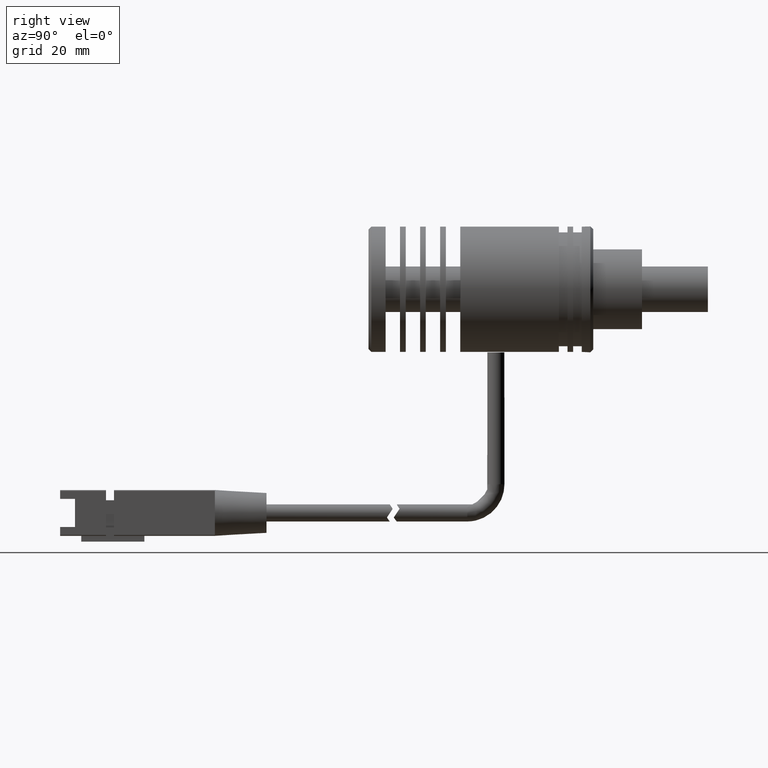
[diagram: clean part render]
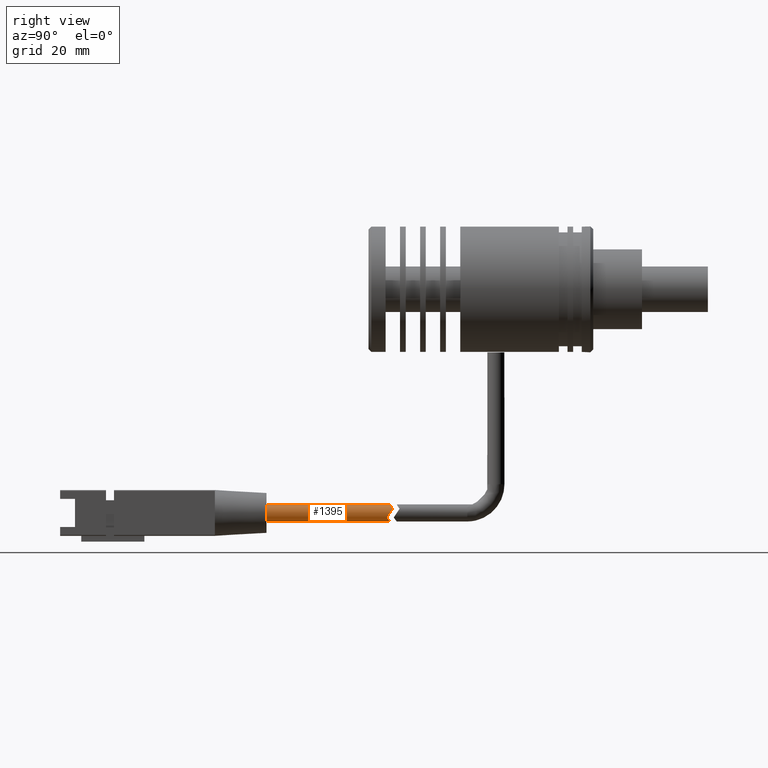
[diagram: same view with one face highlighted and labeled with its STEP entity id]
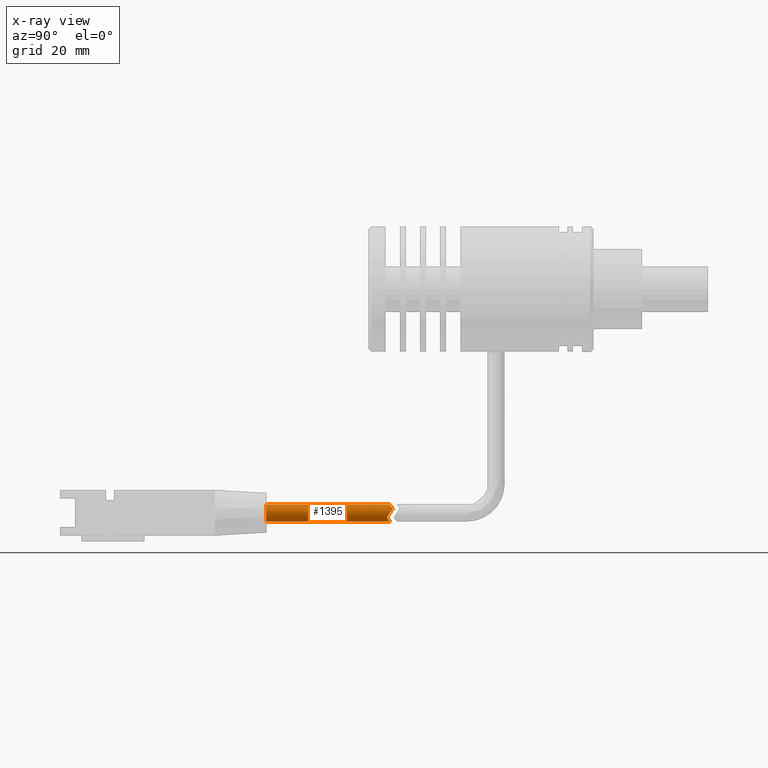
[diagram: x-ray of the same camera — body ghosted, the highlighted face saturated]
A machine part, right view. The second image highlights one B-rep face of the part: STEP entity #1395.
The next image is the same camera in x-ray: the body ghosted, the highlighted face saturated — about 0% of this face is hidden behind the body in this view.
In plain terms, the highlighted cylindrical surface (bore or boss wall) has radius 1.5 mm, axis along (0, -1, 0).
Its self-contained STEP definition (entity closure, byte-faithful):
#34 =( BOUNDED_CURVE ( )  B_SPLINE_CURVE ( 3, ( #1067, #1946, #2819, #844 ),
 .UNSPECIFIED., .F., .F. ) 
 B_SPLINE_CURVE_WITH_KNOTS ( ( 4, 4 ),
 ( 4.226870858089098348, 5.274925224928546541 ),
 .UNSPECIFIED. ) 
 CURVE ( )  GEOMETRIC_REPRESENTATION_ITEM ( )  RATIONAL_B_SPLINE_CURVE ( ( 1.000000000000000000, 0.9105407469386973540, 0.9105407469386973540, 1.000000000000000000 ) ) 
 REPRESENTATION_ITEM ( '' )  );
#123 = CIRCLE ( 'NONE', #627, 1.500000000000001332 ) ;
#167 = ORIENTED_EDGE ( 'NONE', *, *, #1742, .T. ) ;
#196 = DIRECTION ( 'NONE',  ( 6.245004513516504307E-17, -1.000000000000000000, 1.982541115402064370E-16 ) ) ;
#214 = CARTESIAN_POINT ( 'NONE',  ( -26.96658042526088650, -21.91151837666703273, 22.11379310345637350 ) ) ;
#329 = VERTEX_POINT ( 'NONE', #1028 ) ;
#364 = ORIENTED_EDGE ( 'NONE', *, *, #1016, .T. ) ;
#397 = VERTEX_POINT ( 'NONE', #2697 ) ;
#421 =( BOUNDED_CURVE ( )  B_SPLINE_CURVE ( 3, ( #1643, #764, #575, #1666 ),
 .UNSPECIFIED., .F., .F. ) 
 B_SPLINE_CURVE_WITH_KNOTS ( ( 4, 4 ),
 ( 2.133332571338752093, 4.149852735840835471 ),
 .UNSPECIFIED. ) 
 CURVE ( )  GEOMETRIC_REPRESENTATION_ITEM ( )  RATIONAL_B_SPLINE_CURVE ( ( 1.000000000000000000, 0.6888888888888884399, 0.6888888888888884399, 1.000000000000000000 ) ) 
 REPRESENTATION_ITEM ( '' )  );
#575 = CARTESIAN_POINT ( 'NONE',  ( -25.66641876339696537, -21.41096220314088683, 18.36129032258873650 ) ) ;
#627 = AXIS2_PLACEMENT_3D ( 'NONE', #1530, #2193, #1785 ) ;
#764 = CARTESIAN_POINT ( 'NONE',  ( -26.89434562215014779, -21.41096220314088683, 18.36129032258873650 ) ) ;
#810 = EDGE_CURVE ( 'NONE', #2315, #2823, #1444, .T. ) ;
#832 = FACE_OUTER_BOUND ( 'NONE', #1627, .T. ) ;
#844 = CARTESIAN_POINT ( 'NONE',  ( -27.54923994681851340, -22.15289768701186190, 19.40000000000809166 ) ) ;
#855 = DIRECTION ( 'NONE',  ( 0.000000000000000000, 0.000000000000000000, -1.000000000000000000 ) ) ;
#978 = ORIENTED_EDGE ( 'NONE', *, *, #2271, .T. ) ;
#1016 = EDGE_CURVE ( 'NONE', #329, #329, #123, .T. ) ;
#1028 = CARTESIAN_POINT ( 'NONE',  ( -26.28038219277355481, -43.15289768701185835, 18.70000000000809948 ) ) ;
#1054 = CARTESIAN_POINT ( 'NONE',  ( -26.28038219277355836, -8.152897687011856576, 20.20000000000809237 ) ) ;
#1067 = CARTESIAN_POINT ( 'NONE',  ( -27.60703210891572112, -21.15289768701185480, 20.90000000000809166 ) ) ;
#1100 = ORIENTED_EDGE ( 'NONE', *, *, #810, .T. ) ;
#1300 = ORIENTED_EDGE ( 'NONE', *, *, #2845, .T. ) ;
#1372 = CARTESIAN_POINT ( 'NONE',  ( -24.95373227663139559, -21.15289768701185480, 20.90000000000809166 ) ) ;
#1395 = ADVANCED_FACE ( 'NONE', ( #832, #1559 ), #2376, .T. ) ;
#1428 = CARTESIAN_POINT ( 'NONE',  ( -24.71844088790065186, -21.84299657363596125, 19.86485167007194264 ) ) ;
#1444 =( BOUNDED_CURVE ( )  B_SPLINE_CURVE ( 3, ( #2505, #1428, #2488, #2057 ),
 .UNSPECIFIED., .F., .F. ) 
 B_SPLINE_CURVE_WITH_KNOTS ( ( 4, 4 ),
 ( 1.008260082251041245, 2.056314449090486551 ),
 .UNSPECIFIED. ) 
 CURVE ( )  GEOMETRIC_REPRESENTATION_ITEM ( )  RATIONAL_B_SPLINE_CURVE ( ( 1.000000000000000000, 0.9105407469386977981, 0.9105407469386977981, 1.000000000000000000 ) ) 
 REPRESENTATION_ITEM ( '' )  );
#1530 = CARTESIAN_POINT ( 'NONE',  ( -26.28038219277355481, -43.15289768701185835, 20.20000000000809948 ) ) ;
#1559 = FACE_OUTER_BOUND ( 'NONE', #2820, .T. ) ;
#1627 = EDGE_LOOP ( 'NONE', ( #1100, #167, #978, #1300 ) ) ;
#1643 = CARTESIAN_POINT ( 'NONE',  ( -27.54923994681851340, -22.15289768701186190, 19.40000000000809166 ) ) ;
#1666 = CARTESIAN_POINT ( 'NONE',  ( -25.01152443872860331, -22.15289768701186190, 19.40000000000809166 ) ) ;
#1742 = EDGE_CURVE ( 'NONE', #2823, #2559, #2022, .T. ) ;
#1785 = DIRECTION ( 'NONE',  ( 0.000000000000000000, 0.000000000000000000, -1.000000000000000000 ) ) ;
#1946 = CARTESIAN_POINT ( 'NONE',  ( -27.86348021589018487, -21.47691374378565143, 20.41397591484739849 ) ) ;
#2022 =( BOUNDED_CURVE ( )  B_SPLINE_CURVE ( 3, ( #2394, #2822, #214, #2848 ),
 .UNSPECIFIED., .F., .T. ) 
 B_SPLINE_CURVE_WITH_KNOTS ( ( 4, 4 ),
 ( 5.197907102680277447, 7.368463511678894129 ),
 .UNSPECIFIED. ) 
 CURVE ( )  GEOMETRIC_REPRESENTATION_ITEM ( )  RATIONAL_B_SPLINE_CURVE ( ( 1.000000000000000000, 0.6444444444444427100, 0.6444444444444427100, 1.000000000000000000 ) ) 
 REPRESENTATION_ITEM ( '' )  );
#2050 = AXIS2_PLACEMENT_3D ( 'NONE', #1054, #196, #855 ) ;
#2057 = CARTESIAN_POINT ( 'NONE',  ( -24.95373227663139559, -21.15289768701185480, 20.90000000000809166 ) ) ;
#2193 = DIRECTION ( 'NONE',  ( -6.245004513516504307E-17, 1.000000000000000000, -1.982541115402064370E-16 ) ) ;
#2271 = EDGE_CURVE ( 'NONE', #2559, #397, #34, .T. ) ;
#2315 = VERTEX_POINT ( 'NONE', #2631 ) ;
#2376 = CYLINDRICAL_SURFACE ( 'NONE', #2050, 1.500000000000001332 ) ;
#2394 = CARTESIAN_POINT ( 'NONE',  ( -24.95373227663139559, -21.15289768701185480, 20.90000000000809166 ) ) ;
#2488 = CARTESIAN_POINT ( 'NONE',  ( -24.69728416965693896, -21.47691374378565499, 20.41397591484740204 ) ) ;
#2505 = CARTESIAN_POINT ( 'NONE',  ( -25.01152443872860331, -22.15289768701186190, 19.40000000000809166 ) ) ;
#2559 = VERTEX_POINT ( 'NONE', #2704 ) ;
#2631 = CARTESIAN_POINT ( 'NONE',  ( -25.01152443872860331, -22.15289768701186190, 19.40000000000809166 ) ) ;
#2697 = CARTESIAN_POINT ( 'NONE',  ( -27.54923994681851340, -22.15289768701186190, 19.40000000000809166 ) ) ;
#2704 = CARTESIAN_POINT ( 'NONE',  ( -27.60703210891572112, -21.15289768701185480, 20.90000000000809166 ) ) ;
#2819 = CARTESIAN_POINT ( 'NONE',  ( -27.84232349764647196, -21.84299657363595770, 19.86485167007194264 ) ) ;
#2820 = EDGE_LOOP ( 'NONE', ( #364 ) ) ;
#2822 = CARTESIAN_POINT ( 'NONE',  ( -25.59418396028622666, -21.91151837666703628, 22.11379310345637350 ) ) ;
#2823 = VERTEX_POINT ( 'NONE', #1372 ) ;
#2845 = EDGE_CURVE ( 'NONE', #397, #2315, #421, .T. ) ;
#2848 = CARTESIAN_POINT ( 'NONE',  ( -27.60703210891572112, -21.15289768701185480, 20.90000000000809166 ) ) ;